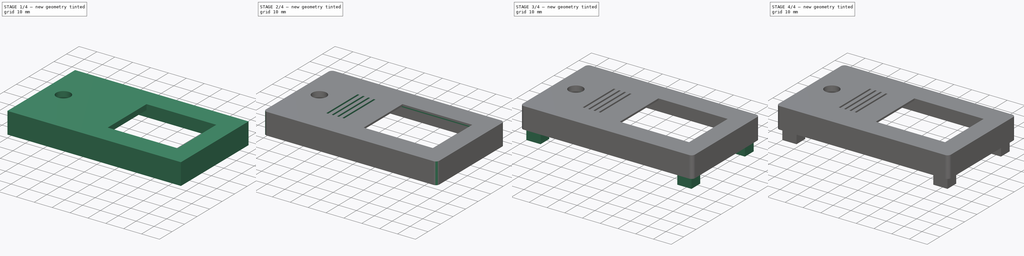
[diagram: build sequence overview — one tinted view per stage of 4, left to right]
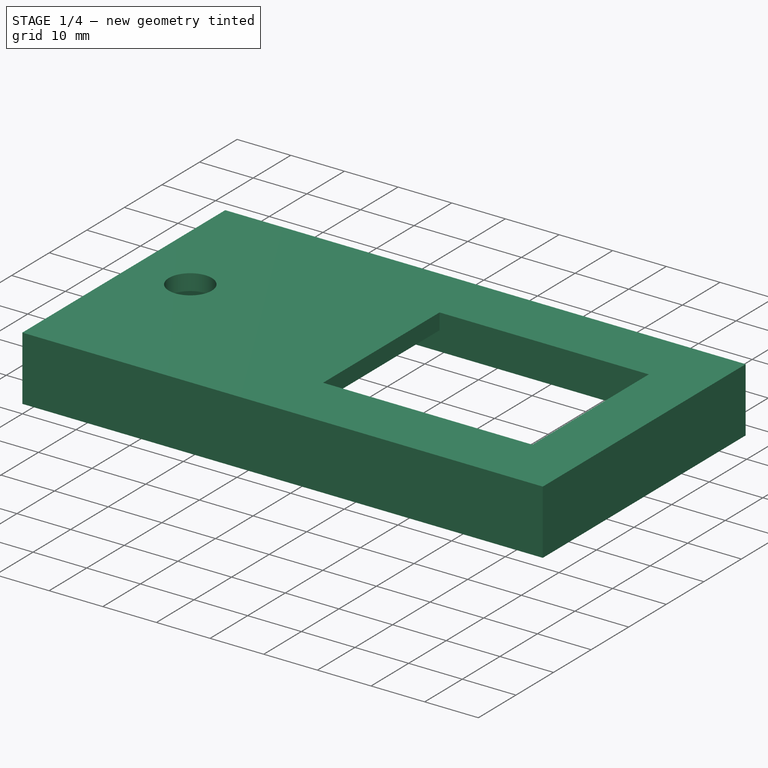
[diagram: stage 1 of 4 — iso view after this stage's code; geometry added in this stage tinted green]
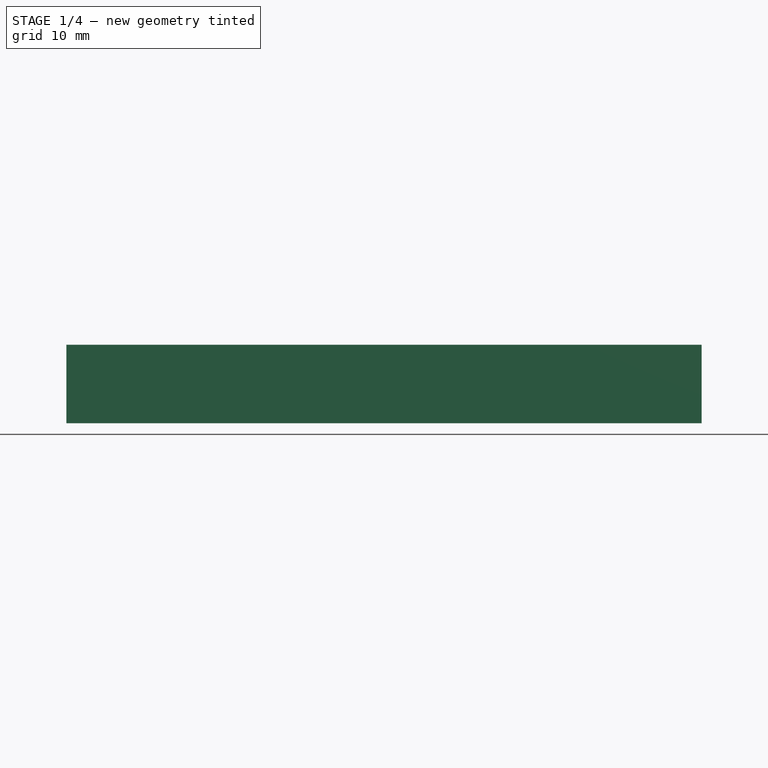
[diagram: stage 1 of 4 — front view after this stage's code; geometry added in this stage tinted green]
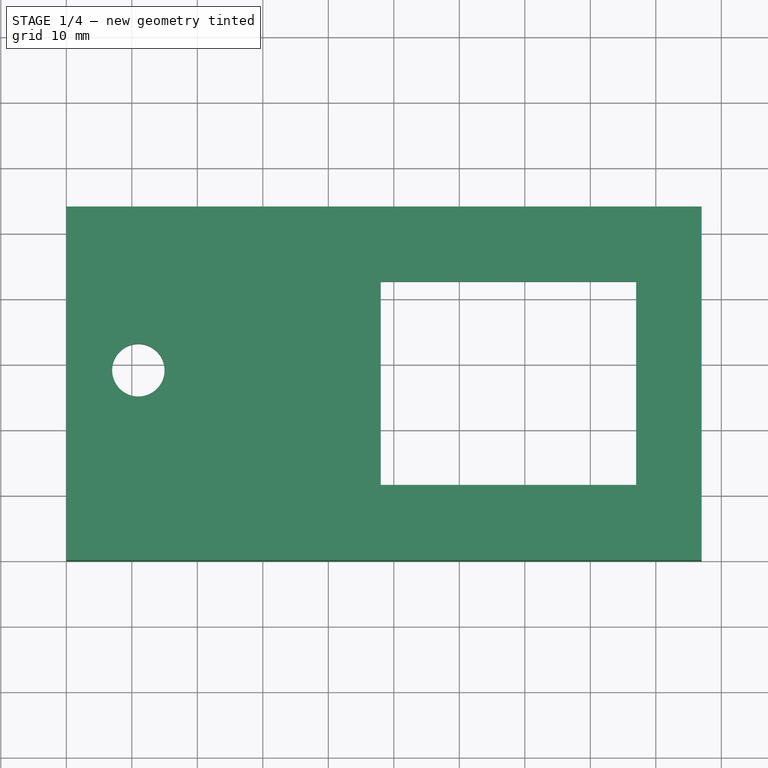
[diagram: stage 1 of 4 — top view after this stage's code; geometry added in this stage tinted green]
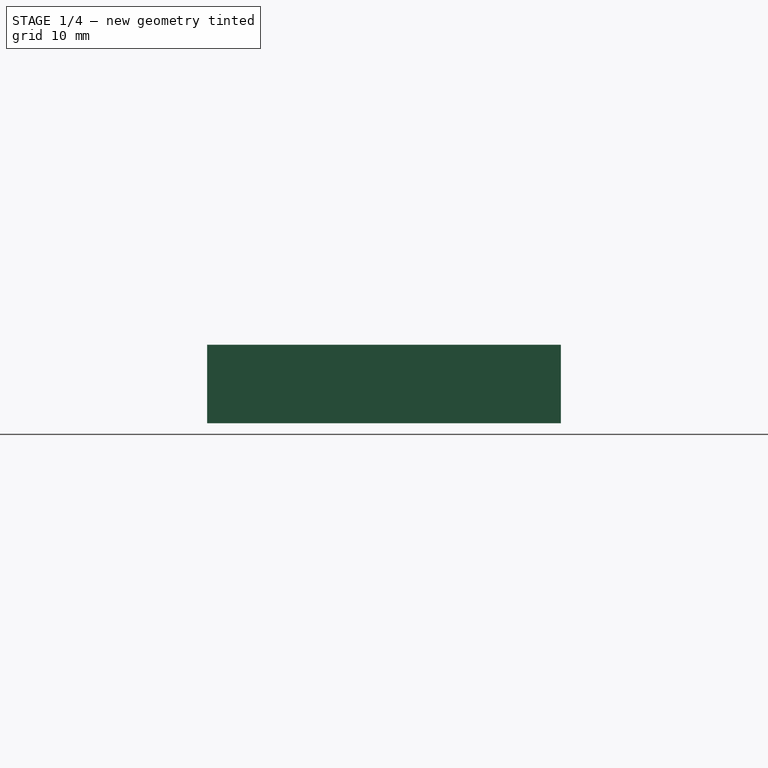
[diagram: stage 1 of 4 — right view after this stage's code; geometry added in this stage tinted green]
FCSTD DOCUMENT  (FreeCAD 0.16R6706 (Git))
Label: Caja_superior
License: All rights reserved
LicenseURL: http://en.wikipedia.org/wiki/All_rights_reserved
objects: Sketcher::SketchObject×9, PartDesign::Pocket×7, PartDesign::Pad×2, PartDesign::Fillet×1
note: 28 computed .brp shape members not serialized (recipe doc carries the construction recipe); baked Part::Feature solids carry a one-line shape summary decoded from their .brp

FEATURE [Sketcher::SketchObject] Sketch
  sketch-geometry (9):
    g0: LineSegment StartX=0 StartY=0 StartZ=0 EndX=97 EndY=0 EndZ=0
    g1: LineSegment StartX=97 StartY=0 StartZ=0 EndX=97 EndY=54 EndZ=0
    g2: LineSegment StartX=97 StartY=54 StartZ=0 EndX=0 EndY=54 EndZ=0
    g3: LineSegment StartX=0 StartY=54 StartZ=0 EndX=0 EndY=0 EndZ=0
    g4: Circle CenterX=11 CenterY=29 CenterZ=0 NormalX=0 NormalY=0 NormalZ=1 Radius=4
    g5: LineSegment StartX=48 StartY=42.5 StartZ=0 EndX=87 EndY=42.5 EndZ=0
    g6: LineSegment StartX=87 StartY=42.5 StartZ=0 EndX=87 EndY=11.5 EndZ=0
    g7: LineSegment StartX=87 StartY=11.5 StartZ=0 EndX=48 EndY=11.5 EndZ=0
    g8: LineSegment StartX=48 StartY=11.5 StartZ=0 EndX=48 EndY=42.5 EndZ=0
  constraints (26):
    c: Coincident(g0,g1)
    c: Coincident(g1,g2)
    c: Coincident(g2,g3)
    c: Coincident(g3,g0)
    c: Horizontal(g0)
    c: Horizontal(g2)
    c: Vertical(g1)
    c: Vertical(g3)
    c: Coincident(g0,g-1)
    c: DistanceX(g2,g2) = 97
    c: DistanceY(g1,g1) = 54
    c: DistanceY(g-1,g4) = 29
    c: DistanceX(g-1,g4) = 11
    c: Radius(g4) = 4
    c: Coincident(g5,g6)
    c: Coincident(g6,g7)
    c: Coincident(g7,g8)
    c: Coincident(g8,g5)
    c: Horizontal(g5)
    c: Horizontal(g7)
    c: Vertical(g6)
    c: Vertical(g8)
    c: DistanceX(g4,g7) = 37
    c: DistanceY(g-1,g7) = 11.5
    c: DistanceX(g7,g7) = 39
    c: DistanceY(g6,g6) = 31
FEATURE [PartDesign::Pad] Pad  label="Bloque"
  Length = 12
  Length2 = 100
  Sketch = -> Sketch
  Type = 0
FEATURE [Sketcher::SketchObject] Sketch001
  Placement = pos=(0,0,0) rot=(1,0,0;3.14159rad)
  Support = -> Pad [Face10]
  sketch-geometry (4):
    g0: LineSegment StartX=2 StartY=-2 StartZ=0 EndX=95 EndY=-2 EndZ=0
    g1: LineSegment StartX=95 StartY=-2 StartZ=0 EndX=95 EndY=-52 EndZ=0
    g2: LineSegment StartX=95 StartY=-52 StartZ=0 EndX=2 EndY=-52 EndZ=0
    g3: LineSegment StartX=2 StartY=-52 StartZ=0 EndX=2 EndY=-2 EndZ=0
  constraints (12):
    c: Coincident(g0,g1)
    c: Coincident(g1,g2)
    c: Coincident(g2,g3)
    c: Coincident(g3,g0)
    c: Horizontal(g0)
    c: Horizontal(g2)
    c: Vertical(g1)
    c: Vertical(g3)
    c: DistanceX(g2,g2) = 93
    c: DistanceY(g1,g1) = 50
    c: DistanceY(g0,g-1) = 2
    c: DistanceX(g-1,g0) = 2
FEATURE [PartDesign::Pocket] Pocket  label="Vaciado_general"
  Length = 9
  Sketch = -> Sketch001
  Type = 0
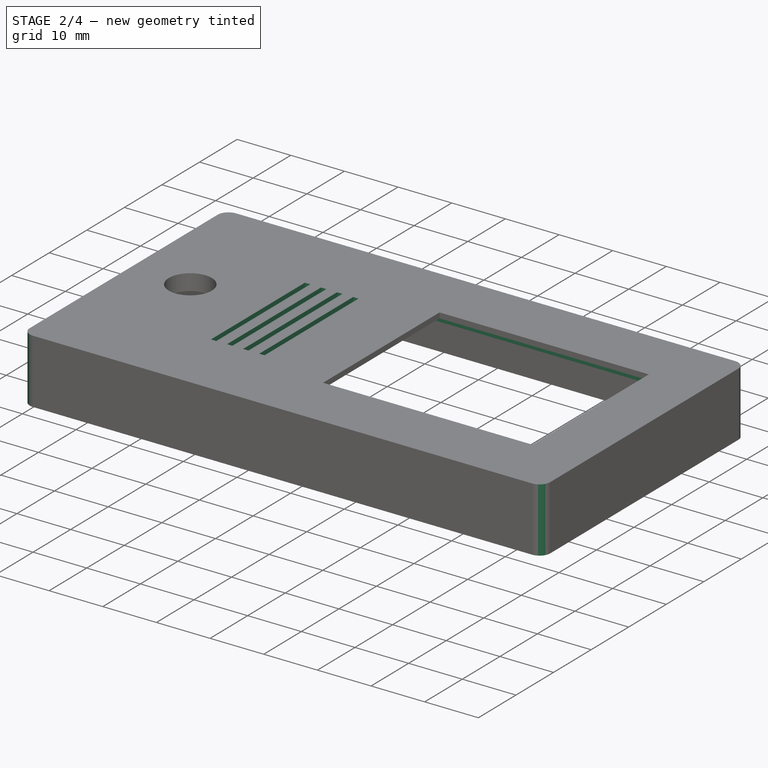
[diagram: stage 2 of 4 — iso view after this stage's code; geometry added in this stage tinted green]
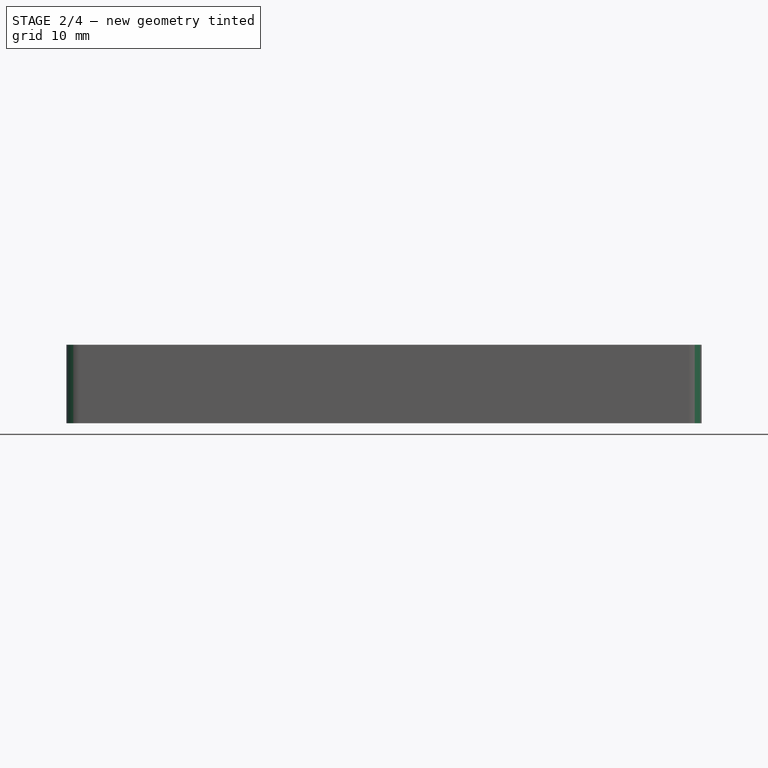
[diagram: stage 2 of 4 — front view after this stage's code; geometry added in this stage tinted green]
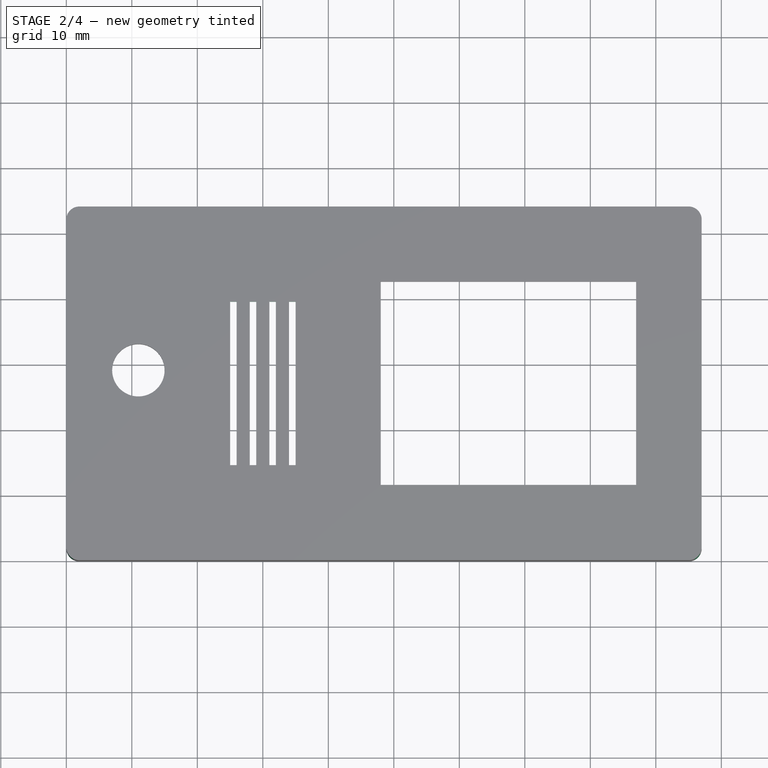
[diagram: stage 2 of 4 — top view after this stage's code; geometry added in this stage tinted green]
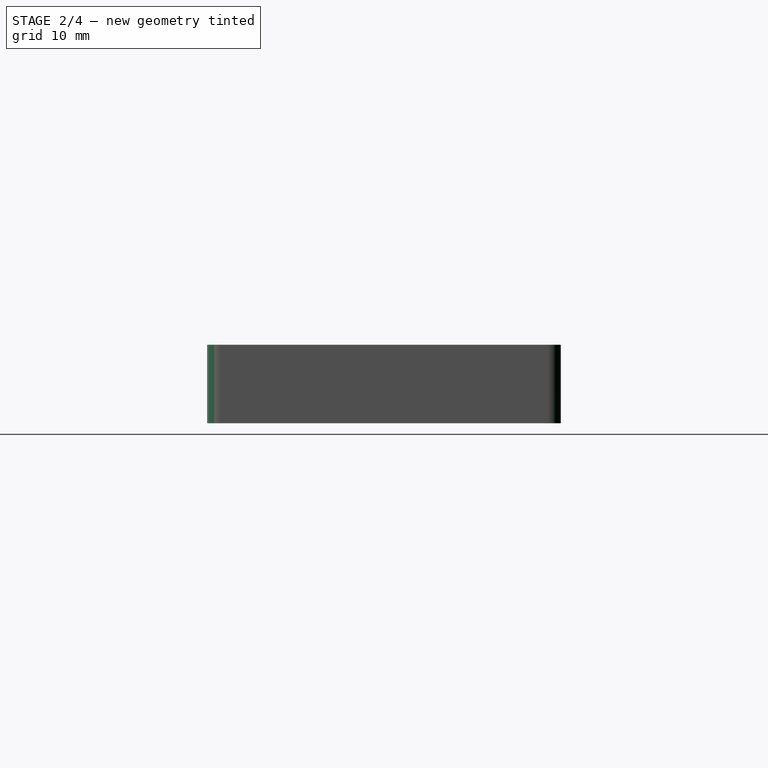
[diagram: stage 2 of 4 — right view after this stage's code; geometry added in this stage tinted green]
FEATURE [Sketcher::SketchObject] Sketch002
  Placement = pos=(0,0,9) rot=(1,0,0;3.14159rad)
  Support = -> Pocket [Face16]
  sketch-geometry (4):
    g0: LineSegment StartX=37 StartY=-9 StartZ=0 EndX=90 EndY=-9 EndZ=0
    g1: LineSegment StartX=90 StartY=-9 StartZ=0 EndX=90 EndY=-45 EndZ=0
    g2: LineSegment StartX=90 StartY=-45 StartZ=0 EndX=37 EndY=-45 EndZ=0
    g3: LineSegment StartX=37 StartY=-45 StartZ=0 EndX=37 EndY=-9 EndZ=0
  constraints (12):
    c: Coincident(g0,g1)
    c: Coincident(g1,g2)
    c: Coincident(g2,g3)
    c: Coincident(g3,g0)
    c: Horizontal(g0)
    c: Horizontal(g2)
    c: Vertical(g1)
    c: Vertical(g3)
    c: DistanceX(g0,g0) = 53
    c: DistanceY(g1,g1) = 36
    c: DistanceX(g-1,g0) = 37
    c: DistanceY(g0,g-1) = 9
FEATURE [PartDesign::Pocket] Pocket001  label="Vaciado_pantalla"
  Length = 2
  Sketch = -> Sketch002
  Type = 0
FEATURE [Sketcher::SketchObject] Sketch003
  Placement = pos=(0,0,12) rot=(0,0,1;0rad)
  Support = -> Pocket001 [Face5]
  sketch-geometry (16):
    g0: LineSegment StartX=28 StartY=39.5 StartZ=0 EndX=29 EndY=39.5 EndZ=0
    g1: LineSegment StartX=29 StartY=39.5 StartZ=0 EndX=29 EndY=14.5 EndZ=0
    g2: LineSegment StartX=29 StartY=14.5 StartZ=0 EndX=28 EndY=14.5 EndZ=0
    g3: LineSegment StartX=28 StartY=14.5 StartZ=0 EndX=28 EndY=39.5 EndZ=0
    g4: LineSegment StartX=31 StartY=39.5 StartZ=0 EndX=32 EndY=39.5 EndZ=0
    g5: LineSegment StartX=32 StartY=39.5 StartZ=0 EndX=32 EndY=14.5 EndZ=0
    g6: LineSegment StartX=32 StartY=14.5 StartZ=0 EndX=31 EndY=14.5 EndZ=0
    g7: LineSegment StartX=31 StartY=14.5 StartZ=0 EndX=31 EndY=39.5 EndZ=0
    g8: LineSegment StartX=25 StartY=39.5 StartZ=0 EndX=26 EndY=39.5 EndZ=0
    g9: LineSegment StartX=26 StartY=39.5 StartZ=0 EndX=26 EndY=14.5 EndZ=0
    g10: LineSegment StartX=26 StartY=14.5 StartZ=0 EndX=25 EndY=14.5 EndZ=0
    g11: LineSegment StartX=25 StartY=14.5 StartZ=0 EndX=25 EndY=39.5 EndZ=0
    g12: LineSegment StartX=34 StartY=39.5 StartZ=0 EndX=35 EndY=39.5 EndZ=0
    g13: LineSegment StartX=35 StartY=39.5 StartZ=0 EndX=35 EndY=14.5 EndZ=0
    g14: LineSegment StartX=35 StartY=14.5 StartZ=0 EndX=34 EndY=14.5 EndZ=0
    g15: LineSegment StartX=34 StartY=14.5 StartZ=0 EndX=34 EndY=39.5 EndZ=0
  constraints (48):
    c: Coincident(g0,g1)
    c: Coincident(g1,g2)
    c: Coincident(g2,g3)
    c: Coincident(g3,g0)
    c: Horizontal(g0)
    c: Horizontal(g2)
    c: Vertical(g1)
    c: Vertical(g3)
    c: Coincident(g4,g5)
    c: Coincident(g5,g6)
    c: Coincident(g6,g7)
    c: Coincident(g7,g4)
    c: Horizontal(g4)
    c: Horizontal(g6)
    c: Vertical(g5)
    c: Vertical(g7)
    c: Coincident(g8,g9)
    c: Coincident(g9,g10)
    c: Coincident(g10,g11)
    c: Coincident(g11,g8)
    c: Horizontal(g8)
    c: Horizontal(g10)
    c: Vertical(g9)
    c: Vertical(g11)
    c: DistanceY(g11,g11) = 25
    c: DistanceY(g1,g1) = 25
    c: DistanceY(g5,g5) = 25
    c: DistanceY(g2,g9) = 0
    c: DistanceY(g6,g1) = 0
    c: DistanceY(g-1,g10) = 14.5
    c: DistanceX(g-1,g10) = 25
    c: DistanceX(g8,g0) = 2
    c: DistanceX(g0,g4) = 2
    c: DistanceX(g8,g8) = 1
    c: DistanceX(g0,g0) = 1
    c: DistanceX(g4,g4) = 1
    c: Coincident(g12,g13)
    c: Coincident(g13,g14)
    c: Coincident(g14,g15)
    c: Coincident(g15,g12)
    c: Horizontal(g12)
    c: Horizontal(g14)
    c: Vertical(g13)
    c: Vertical(g15)
    c: DistanceY(g13,g13) = 25
    c: DistanceY(g5,g14) = 0
    c: DistanceX(g4,g12) = 2
    c: DistanceX(g12,g12) = 1
FEATURE [PartDesign::Pocket] Pocket002  label="Ventilación_driver"
  Length = 5
  Sketch = -> Sketch003
  Type = 1
FEATURE [PartDesign::Fillet] Fillet
  Base = -> Pocket002 [Edge2,Edge1,Edge8,Edge5]
  Radius = 2
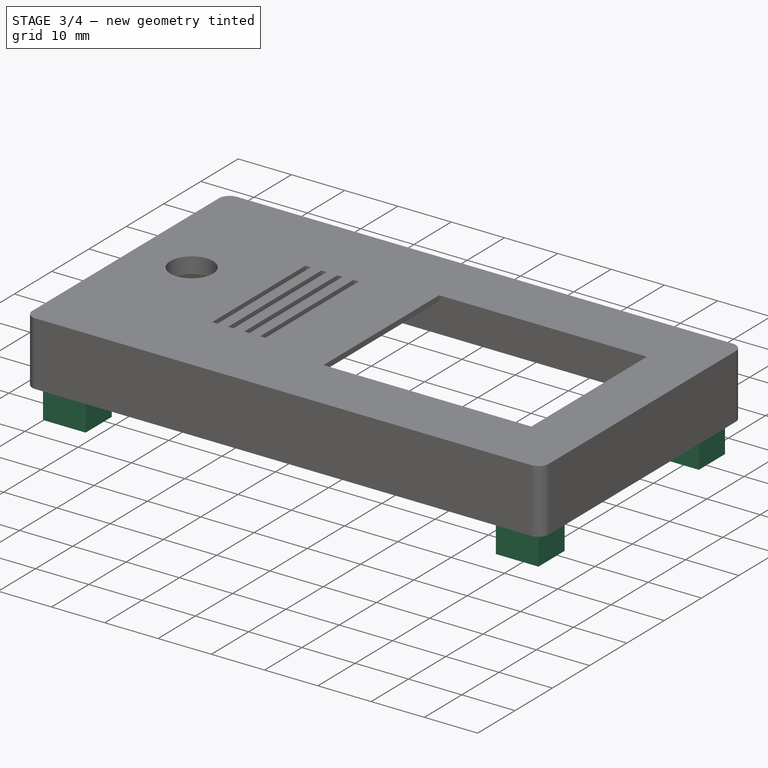
[diagram: stage 3 of 4 — iso view after this stage's code; geometry added in this stage tinted green]
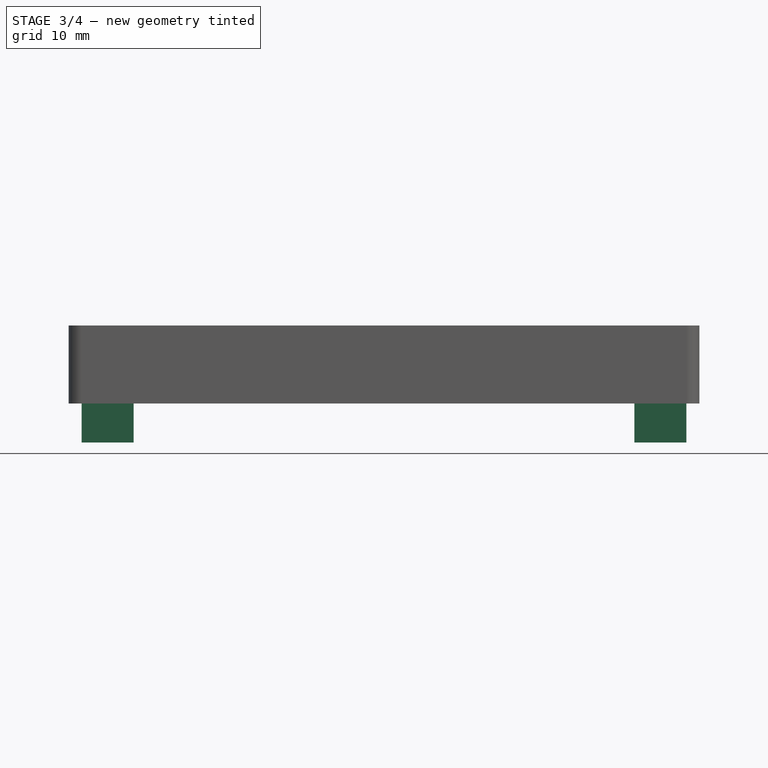
[diagram: stage 3 of 4 — front view after this stage's code; geometry added in this stage tinted green]
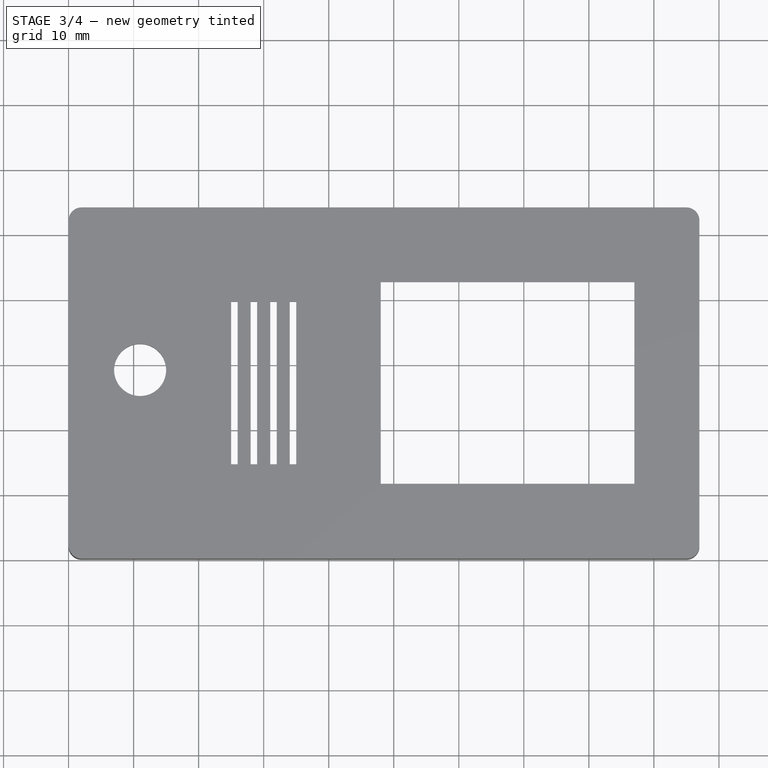
[diagram: stage 3 of 4 — top view after this stage's code; geometry added in this stage tinted green]
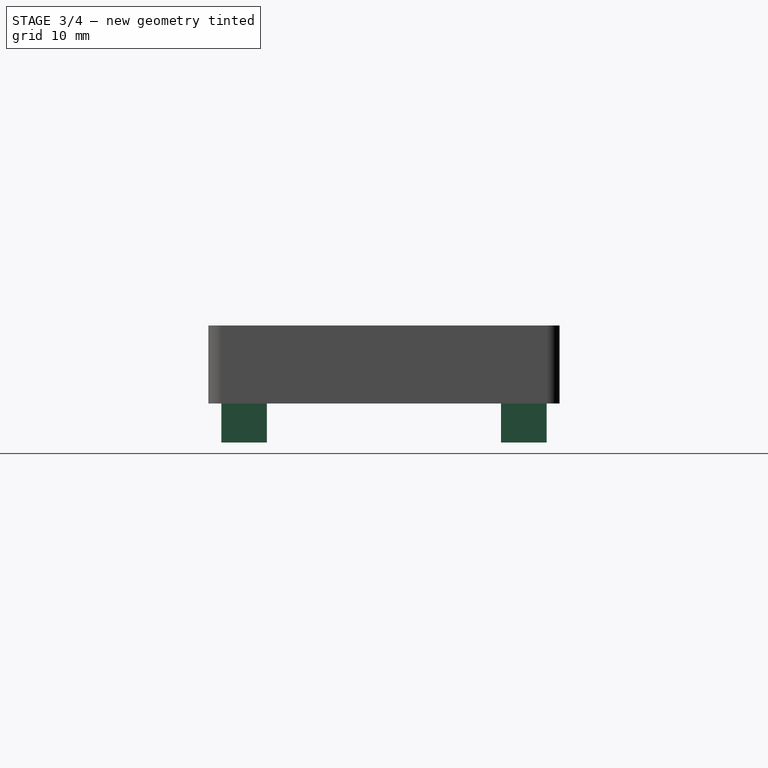
[diagram: stage 3 of 4 — right view after this stage's code; geometry added in this stage tinted green]
FEATURE [Sketcher::SketchObject] Sketch004
  Placement = pos=(0,0,9) rot=(1,0,0;3.14159rad)
  Support = -> Fillet [Face36]
  sketch-geometry (20):
    g0: LineSegment StartX=2 StartY=-2 StartZ=0 EndX=10 EndY=-2 EndZ=0
    g1: LineSegment StartX=10 StartY=-2 StartZ=0 EndX=10 EndY=-9 EndZ=0
    g2: LineSegment StartX=10 StartY=-9 StartZ=0 EndX=2 EndY=-9 EndZ=0
    g3: LineSegment StartX=2 StartY=-9 StartZ=0 EndX=2 EndY=-2 EndZ=0
    g4: LineSegment StartX=95 StartY=-2 StartZ=0 EndX=87 EndY=-2 EndZ=0
    g5: LineSegment StartX=87 StartY=-2 StartZ=0 EndX=87 EndY=-9 EndZ=0
    g6: LineSegment StartX=87 StartY=-9 StartZ=0 EndX=95 EndY=-9 EndZ=0
    g7: LineSegment StartX=95 StartY=-9 StartZ=0 EndX=95 EndY=-2 EndZ=0
    g8: LineSegment StartX=2 StartY=-45 StartZ=0 EndX=10 EndY=-45 EndZ=0
    g9: LineSegment StartX=10 StartY=-45 StartZ=0 EndX=10 EndY=-52 EndZ=0
    g10: LineSegment StartX=10 StartY=-52 StartZ=0 EndX=2 EndY=-52 EndZ=0
    g11: LineSegment StartX=2 StartY=-52 StartZ=0 EndX=2 EndY=-45 EndZ=0
    g12: LineSegment StartX=95 StartY=-45 StartZ=0 EndX=87 EndY=-45 EndZ=0
    g13: LineSegment StartX=87 StartY=-45 StartZ=0 EndX=87 EndY=-52 EndZ=0
    g14: LineSegment StartX=87 StartY=-52 StartZ=0 EndX=95 EndY=-52 EndZ=0
    g15: LineSegment StartX=95 StartY=-52 StartZ=0 EndX=95 EndY=-45 EndZ=0
    g16: Circle CenterX=6 CenterY=-5.5 CenterZ=0 NormalX=0 NormalY=0 NormalZ=1 Radius=1.7
    g17: Circle CenterX=91 CenterY=-5.5 CenterZ=0 NormalX=0 NormalY=0 NormalZ=1 Radius=1.7
    g18: Circle CenterX=91 CenterY=-48.5 CenterZ=0 NormalX=0 NormalY=0 NormalZ=1 Radius=1.7
    g19: Circle CenterX=6 CenterY=-48.5 CenterZ=0 NormalX=0 NormalY=0 NormalZ=1 Radius=1.7
  constraints (60):
    c: Coincident(g0,g1)
    c: Coincident(g1,g2)
    c: Coincident(g2,g3)
    c: Coincident(g3,g0)
    c: Horizontal(g0)
    c: Horizontal(g2)
    c: Vertical(g1)
    c: Vertical(g3)
    c: DistanceY(g0,g-1) = 2
    c: DistanceX(g-1,g0) = 2
    c: DistanceY(g1,g1) = 7
    c: DistanceX(g2,g2) = 8
    c: Coincident(g4,g5)
    c: Coincident(g5,g6)
    c: Coincident(g6,g7)
    c: Coincident(g7,g4)
    c: Horizontal(g4)
    c: Horizontal(g6)
    c: Vertical(g5)
    c: Vertical(g7)
    c: Equal(g1,g5) = 7
    c: Equal(g2,g6) = 8
    c: DistanceY(g6,g1) = 0
    c: DistanceX(g-1,g4) = 95
    c: Coincident(g8,g9)
    c: Coincident(g9,g10)
    c: Coincident(g10,g11)
    c: Coincident(g11,g8)
    c: Horizontal(g8)
    c: Horizontal(g10)
    c: Vertical(g9)
    c: Vertical(g11)
    c: Equal(g1,g9) = 7
    c: Equal(g2,g10) = 8
    c: Coincident(g12,g13)
    c: Coincident(g13,g14)
    c: Coincident(g14,g15)
    c: Coincident(g15,g12)
    c: Horizontal(g12)
    c: Horizontal(g14)
    c: Vertical(g13)
    c: Vertical(g15)
    c: Equal(g9,g13) = 7
    c: Equal(g10,g14) = 8
    c: DistanceY(g14,g9) = 0
    c: DistanceX(g2,g8) = 0
    c: DistanceY(g10,g-1) = 52
    c: DistanceX(g12,g5) = 0
    c: Radius(g16) = 1.7
    c: DistanceY(g16,g-1) = 5.5
    c: DistanceX(g-1,g16) = 6
    c: DistanceX(g17,g4) = 4
    c: DistanceY(g17,g4) = 3.5
    c: Radius(g17) = 1.7
    c: DistanceX(g18,g14) = 4
    c: DistanceY(g14,g18) = 3.5
    c: Radius(g18) = 1.7
    c: DistanceX(g10,g19) = 4
    c: DistanceY(g10,g19) = 3.5
    c: Radius(g19) = 1.7
FEATURE [PartDesign::Pad] Pad001  label="Torres"
  Length = 15
  Length2 = 100
  Sketch = -> Sketch004
  Type = 0
FEATURE [Sketcher::SketchObject] Sketch006
  Placement = pos=(0,0,-6) rot=(1,0,0;3.14159rad)
  Support = -> Pad001 [Face52]
  sketch-geometry (7):
    g0: LineSegment StartX=7.6 StartY=-8.27128 StartZ=0 EndX=9.2 EndY=-5.5 EndZ=0
    g1: LineSegment StartX=9.2 StartY=-5.5 StartZ=0 EndX=7.6 EndY=-2.72872 EndZ=0
    g2: LineSegment StartX=7.6 StartY=-2.72872 StartZ=0 EndX=4.4 EndY=-2.72872 EndZ=0
    g3: LineSegment StartX=4.4 StartY=-2.72872 StartZ=0 EndX=2.8 EndY=-5.5 EndZ=0
    g4: LineSegment StartX=2.8 StartY=-5.5 StartZ=0 EndX=4.4 EndY=-8.27128 EndZ=0
    g5: LineSegment StartX=4.4 StartY=-8.27128 StartZ=0 EndX=7.6 EndY=-8.27128 EndZ=0
    g6: Circle [constr] CenterX=6 CenterY=-5.5 CenterZ=0 NormalX=0 NormalY=0 NormalZ=1 Radius=3.2
  constraints (17):
    c: Coincident(g0,g1)
    c: Coincident(g1,g2)
    c: Coincident(g2,g3)
    c: Coincident(g3,g4)
    c: Coincident(g4,g5)
    c: Coincident(g5,g0)
    c: Equal(g0, g1-g5) x5
    c: PointOnObject(g0,g6)
    c: PointOnObject(g1,g6)
    c: PointOnObject(g2,g6)
    c: PointOnObject(g3,g6)
    c: PointOnObject(g4,g6)
    c: PointOnObject(g5,g6)
    c: Parallel(g2,g-1)
    c: DistanceY(g6,g-1) = 5.5
    c: DistanceX(g-1,g6) = 6
    c: Radius(g6) = 3.2
FEATURE [PartDesign::Pocket] Pocket003  label="Tuerca_1"
  Length = 2.5
  Sketch = -> Sketch006
  Type = 0
FEATURE [Sketcher::SketchObject] Sketch007
  Placement = pos=(0,0,-6) rot=(1,0,0;3.14159rad)
  Support = -> Pocket003 [Face44]
  sketch-geometry (7):
    g0: LineSegment StartX=92.6 StartY=-8.27128 StartZ=0 EndX=94.2 EndY=-5.5 EndZ=0
    g1: LineSegment StartX=94.2 StartY=-5.5 StartZ=0 EndX=92.6 EndY=-2.72872 EndZ=0
    g2: LineSegment StartX=92.6 StartY=-2.72872 StartZ=0 EndX=89.4 EndY=-2.72872 EndZ=0
    g3: LineSegment StartX=89.4 StartY=-2.72872 StartZ=0 EndX=87.8 EndY=-5.5 EndZ=0
    g4: LineSegment StartX=87.8 StartY=-5.5 StartZ=0 EndX=89.4 EndY=-8.27128 EndZ=0
    g5: LineSegment StartX=89.4 StartY=-8.27128 StartZ=0 EndX=92.6 EndY=-8.27128 EndZ=0
    g6: Circle [constr] CenterX=91 CenterY=-5.5 CenterZ=0 NormalX=0 NormalY=0 NormalZ=1 Radius=3.2
  constraints (17):
    c: Coincident(g0,g1)
    c: Coincident(g1,g2)
    c: Coincident(g2,g3)
    c: Coincident(g3,g4)
    c: Coincident(g4,g5)
    c: Coincident(g5,g0)
    c: Equal(g0, g1-g5) x5
    c: PointOnObject(g0,g6)
    c: PointOnObject(g1,g6)
    c: PointOnObject(g2,g6)
    c: PointOnObject(g3,g6)
    c: PointOnObject(g4,g6)
    c: PointOnObject(g5,g6)
    c: DistanceX(g-1,g6) = 91
    c: DistanceY(g6,g-1) = 5.5
    c: Parallel(g2,g-1)
    c: Radius(g6) = 3.2
FEATURE [PartDesign::Pocket] Pocket004  label="Tuerca_2"
  Length = 2.5
  Sketch = -> Sketch007
  Type = 0
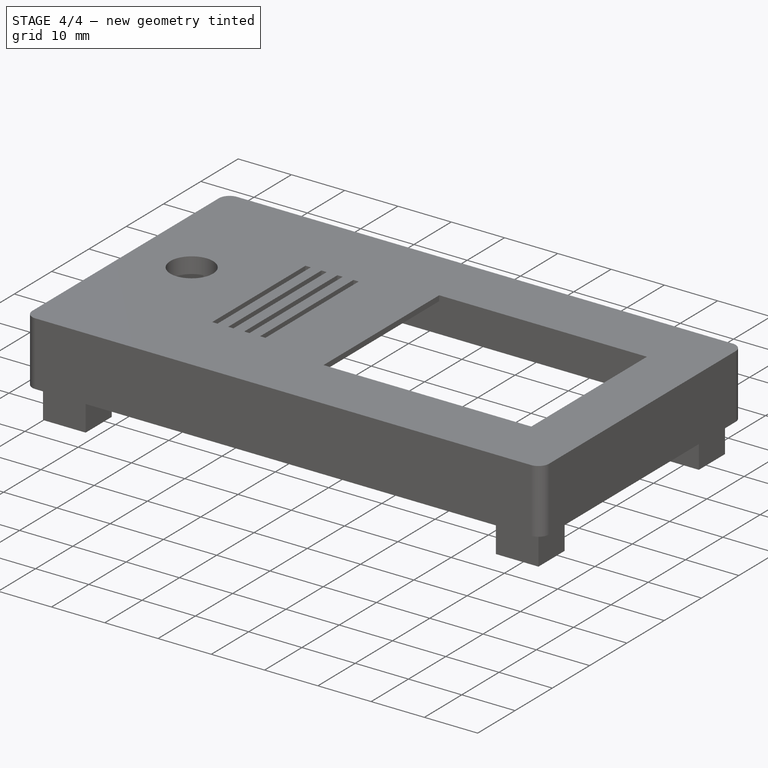
[diagram: stage 4 of 4 — iso view after this stage's code; geometry added in this stage tinted green]
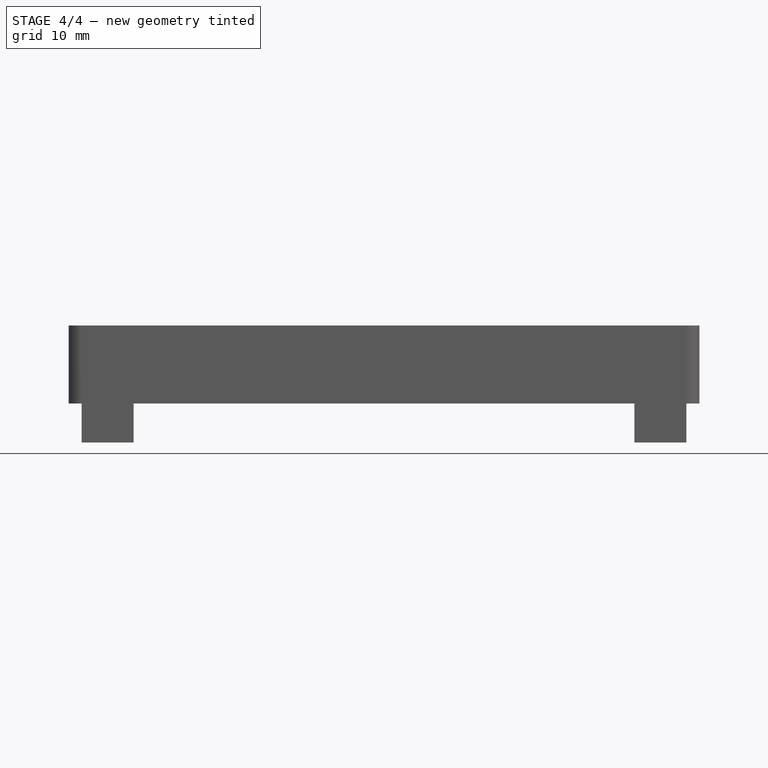
[diagram: stage 4 of 4 — front view after this stage's code; geometry added in this stage tinted green]
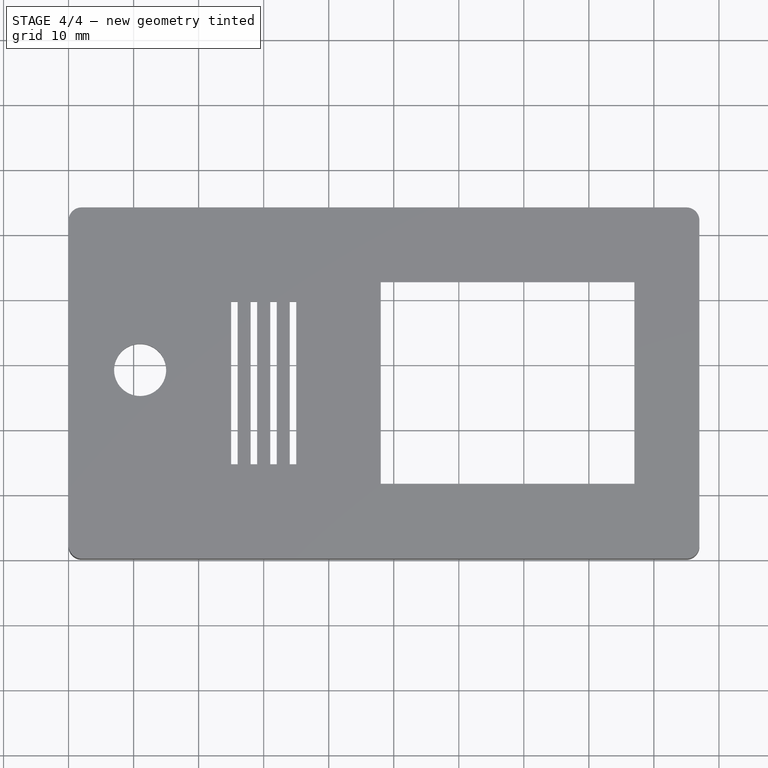
[diagram: stage 4 of 4 — top view after this stage's code; geometry added in this stage tinted green]
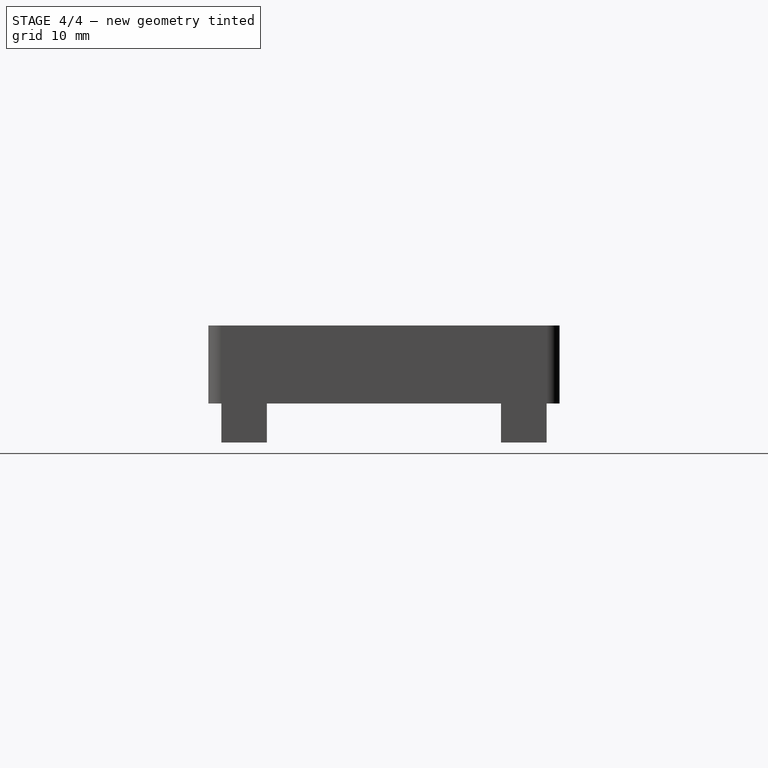
[diagram: stage 4 of 4 — right view after this stage's code; geometry added in this stage tinted green]
FEATURE [Sketcher::SketchObject] Sketch008
  Placement = pos=(0,0,-6) rot=(1,0,0;3.14159rad)
  Support = -> Pocket004 [Face57]
  sketch-geometry (7):
    g0: LineSegment StartX=7.75 StartY=-51.5311 StartZ=0 EndX=9.5 EndY=-48.5 EndZ=0
    g1: LineSegment StartX=9.5 StartY=-48.5 StartZ=0 EndX=7.75 EndY=-45.4689 EndZ=0
    g2: LineSegment StartX=7.75 StartY=-45.4689 StartZ=0 EndX=4.25 EndY=-45.4689 EndZ=0
    g3: LineSegment StartX=4.25 StartY=-45.4689 StartZ=0 EndX=2.5 EndY=-48.5 EndZ=0
    g4: LineSegment StartX=2.5 StartY=-48.5 StartZ=0 EndX=4.25 EndY=-51.5311 EndZ=0
    g5: LineSegment StartX=4.25 StartY=-51.5311 StartZ=0 EndX=7.75 EndY=-51.5311 EndZ=0
    g6: Circle [constr] CenterX=6 CenterY=-48.5 CenterZ=0 NormalX=0 NormalY=0 NormalZ=1 Radius=3.5
  constraints (17):
    c: Coincident(g0,g1)
    c: Coincident(g1,g2)
    c: Coincident(g2,g3)
    c: Coincident(g3,g4)
    c: Coincident(g4,g5)
    c: Coincident(g5,g0)
    c: Equal(g0, g1-g5) x5
    c: PointOnObject(g0,g6)
    c: PointOnObject(g1,g6)
    c: PointOnObject(g2,g6)
    c: PointOnObject(g3,g6)
    c: PointOnObject(g4,g6)
    c: PointOnObject(g5,g6)
    c: Parallel(g2,g-1)
    c: DistanceX(g-1,g6) = 6
    c: DistanceY(g6,g-1) = 48.5
    c: Radius(g6) = 3.5
FEATURE [PartDesign::Pocket] Pocket005  label="Tuerca_3"
  Length = 2.5
  Sketch = -> Sketch008
  Type = 0
FEATURE [Sketcher::SketchObject] Sketch010
  Placement = pos=(0,0,-6) rot=(1,0,0;3.14159rad)
  Support = -> Pocket005 [Face51]
  sketch-geometry (7):
    g0: LineSegment StartX=92.75 StartY=-51.5311 StartZ=0 EndX=94.5 EndY=-48.5 EndZ=0
    g1: LineSegment StartX=94.5 StartY=-48.5 StartZ=0 EndX=92.75 EndY=-45.4689 EndZ=0
    g2: LineSegment StartX=92.75 StartY=-45.4689 StartZ=0 EndX=89.25 EndY=-45.4689 EndZ=0
    g3: LineSegment StartX=89.25 StartY=-45.4689 StartZ=0 EndX=87.5 EndY=-48.5 EndZ=0
    g4: LineSegment StartX=87.5 StartY=-48.5 StartZ=0 EndX=89.25 EndY=-51.5311 EndZ=0
    g5: LineSegment StartX=89.25 StartY=-51.5311 StartZ=0 EndX=92.75 EndY=-51.5311 EndZ=0
    g6: Circle [constr] CenterX=91 CenterY=-48.5 CenterZ=0 NormalX=0 NormalY=0 NormalZ=1 Radius=3.5
  constraints (17):
    c: Coincident(g0,g1)
    c: Coincident(g1,g2)
    c: Coincident(g2,g3)
    c: Coincident(g3,g4)
    c: Coincident(g4,g5)
    c: Coincident(g5,g0)
    c: Equal(g0, g1-g5) x5
    c: PointOnObject(g0,g6)
    c: PointOnObject(g1,g6)
    c: PointOnObject(g2,g6)
    c: PointOnObject(g3,g6)
    c: PointOnObject(g4,g6)
    c: PointOnObject(g5,g6)
    c: Parallel(g2,g-1)
    c: DistanceX(g-1,g6) = 91
    c: DistanceY(g6,g-1) = 48.5
    c: Radius(g6) = 3.5
FEATURE [PartDesign::Pocket] Pocket006  label="Tuerca_4"
  Length = 2.5
  Sketch = -> Sketch010
  Type = 0
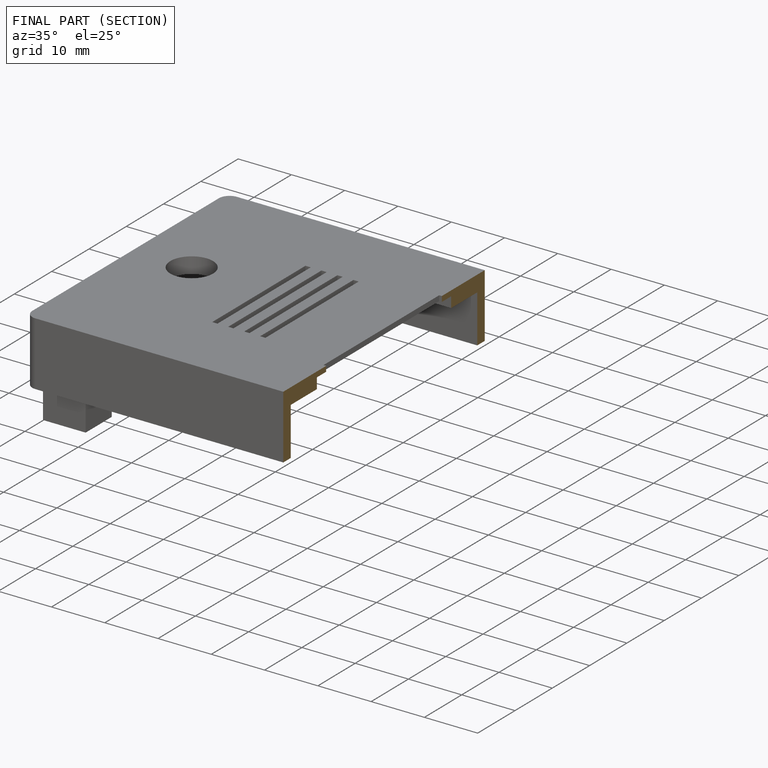
[diagram: finished part — half-section view (interior)]
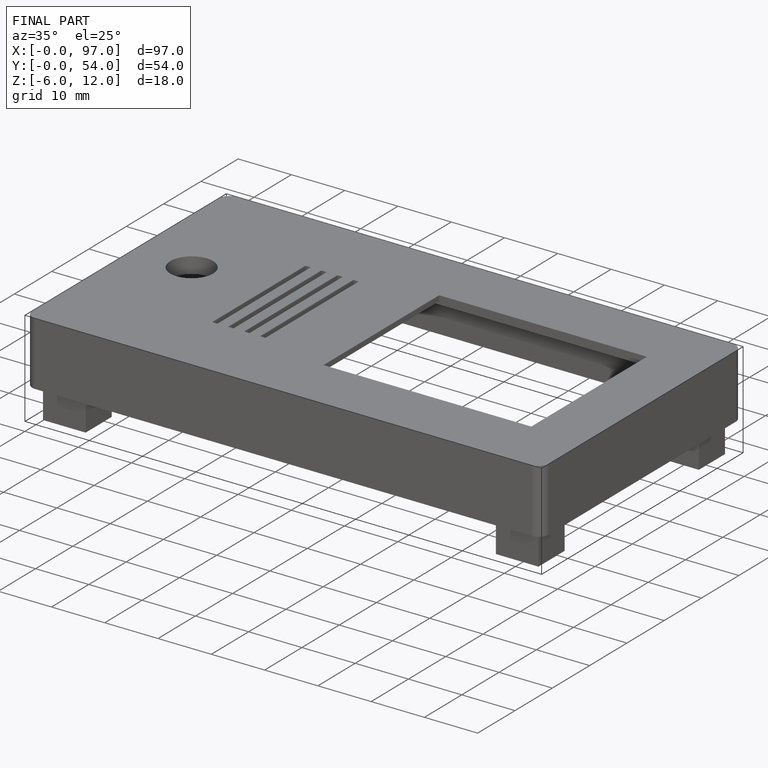
[diagram: finished part — iso view with bounding-box wireframe]
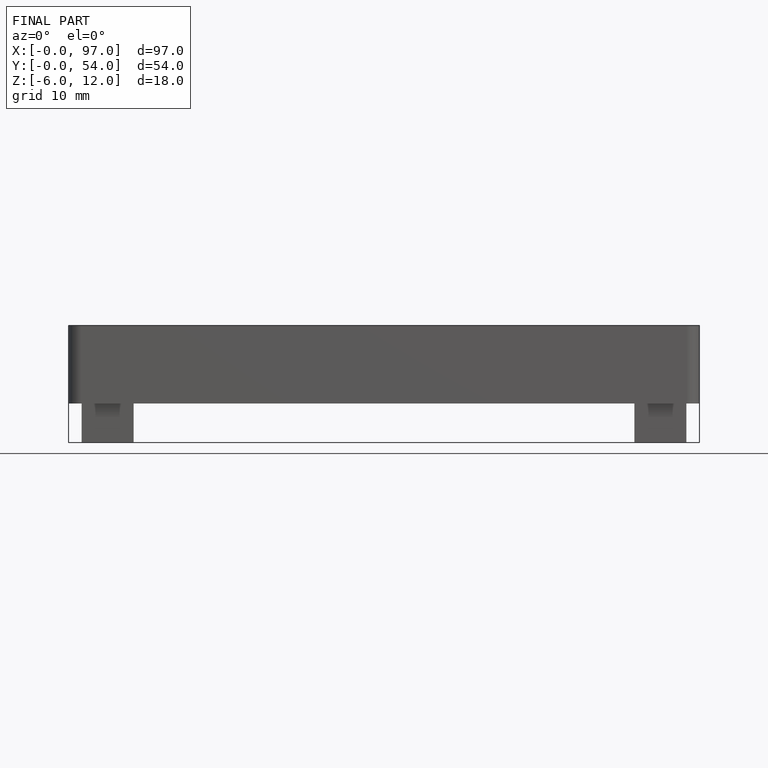
[diagram: finished part — front view with bounding-box wireframe]
